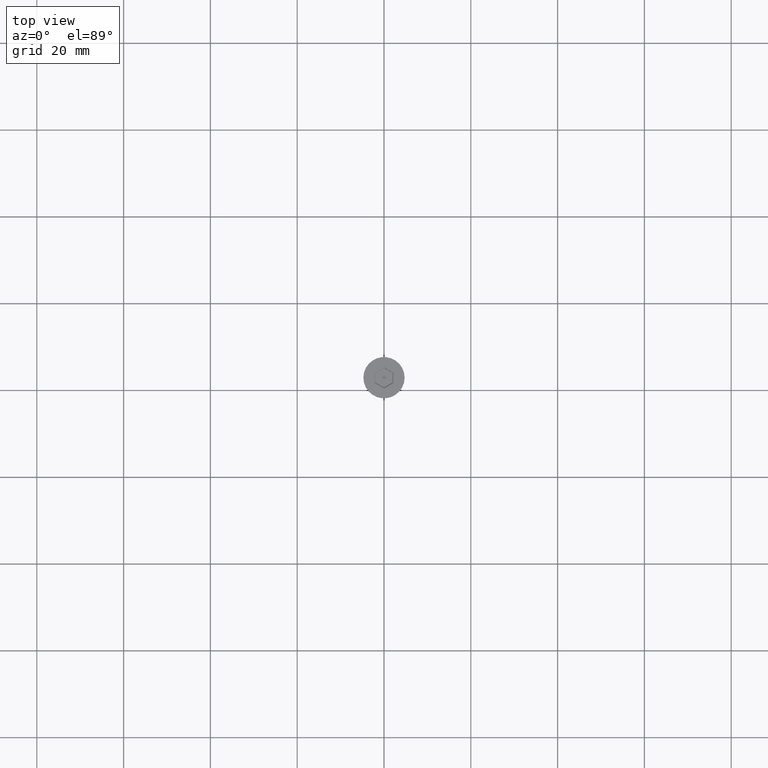
[diagram: clean part render]
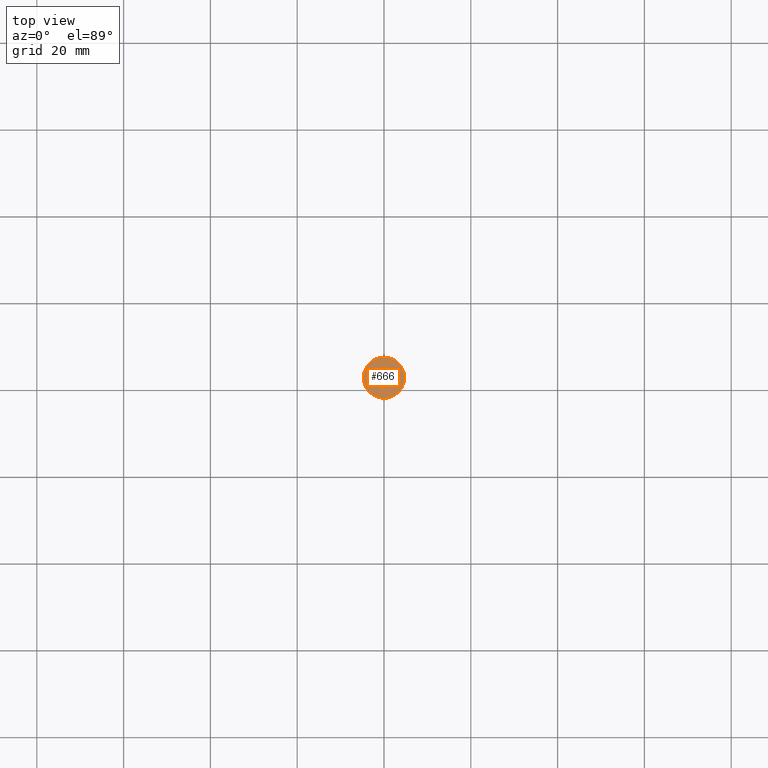
[diagram: same view with one face highlighted and labeled with its STEP entity id]
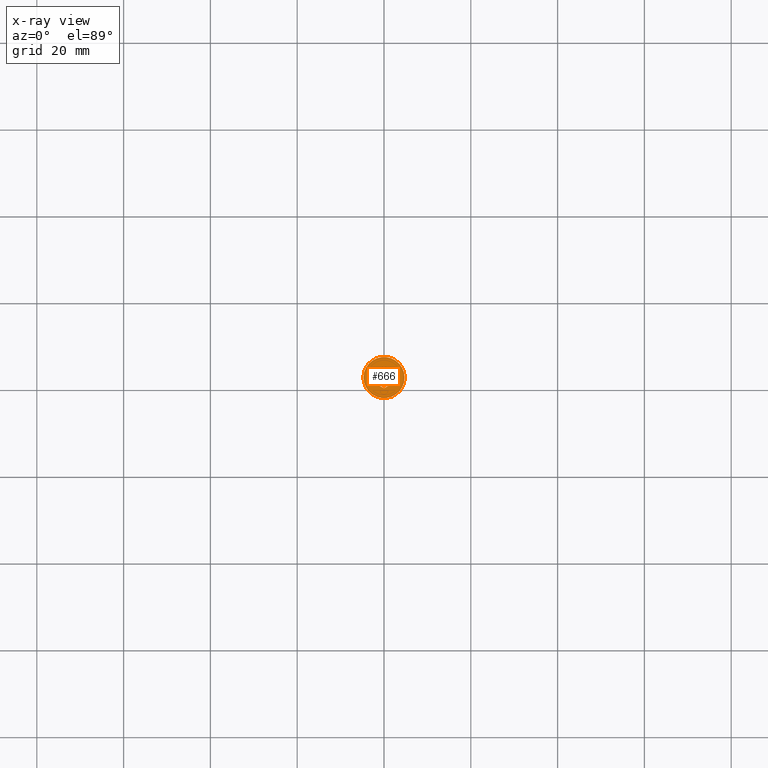
[diagram: x-ray of the same camera — body ghosted, the highlighted face saturated]
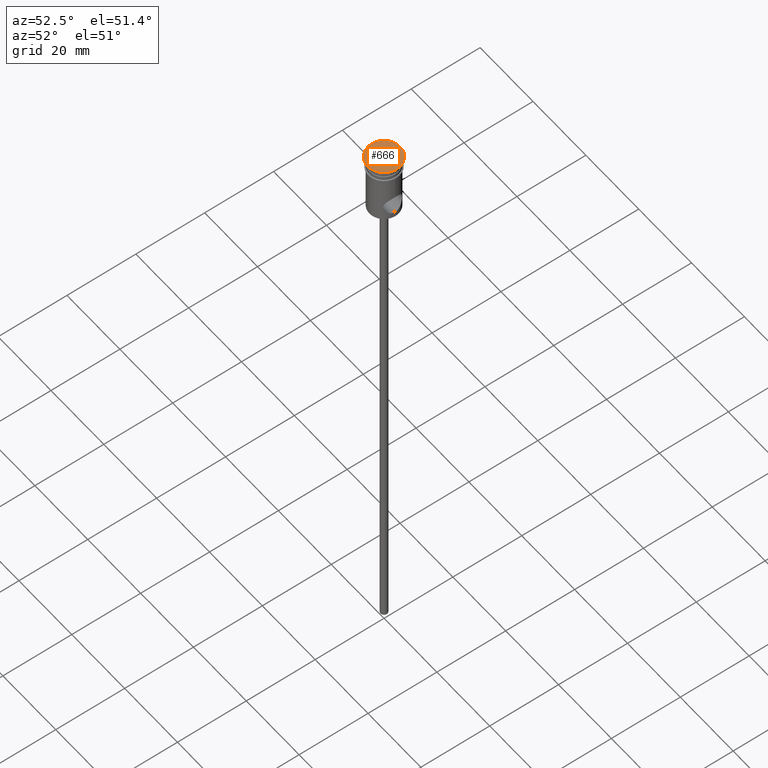
[diagram: same view with one face highlighted and labeled with its STEP entity id]
A machine part, top view. The second image highlights one B-rep face of the part: STEP entity #666.
The next image is the same camera in x-ray: the body ghosted, the highlighted face saturated — about 0% of this face is hidden behind the body in this view.
A second angle (auxiliary view) of the same face is appended — the face is thin or edge-on in the first view.
In plain terms, the highlighted planar face has unit normal (0, -0, 1).
Its self-contained STEP definition (entity closure, byte-faithful):
#2 = AXIS2_PLACEMENT_3D ( 'NONE', #846, #743, #202 ) ;
#7 = ORIENTED_EDGE ( 'NONE', *, *, #1334, .T. ) ;
#16 = VERTEX_POINT ( 'NONE', #1260 ) ;
#58 = LINE ( 'NONE', #66, #555 ) ;
#65 = DIRECTION ( 'NONE',  ( 1.000000000000000000, 0.000000000000000000, 0.000000000000000000 ) ) ;
#66 = CARTESIAN_POINT ( 'NONE',  ( 2.049999999999996714, 1.299038105676652455, 0.000000000000000000 ) ) ;
#68 = ORIENTED_EDGE ( 'NONE', *, *, #1318, .T. ) ;
#71 = LINE ( 'NONE', #646, #471 ) ;
#93 = ORIENTED_EDGE ( 'NONE', *, *, #639, .T. ) ;
#137 = LINE ( 'NONE', #788, #656 ) ;
#158 = DIRECTION ( 'NONE',  ( 1.000000000000000000, 0.000000000000000000, 0.000000000000000000 ) ) ;
#202 = DIRECTION ( 'NONE',  ( 1.000000000000000000, 0.000000000000000000, 0.000000000000000000 ) ) ;
#210 = LINE ( 'NONE', #1409, #1229 ) ;
#256 = EDGE_CURVE ( 'NONE', #16, #882, #137, .T. ) ;
#261 = AXIS2_PLACEMENT_3D ( 'NONE', #434, #1303, #65 ) ;
#266 = VECTOR ( 'NONE', #971, 1000.000000000000000 ) ;
#268 = CARTESIAN_POINT ( 'NONE',  ( -6.517717499969021618E-16, -2.482606157515383050, 0.000000000000000000 ) ) ;
#306 = LINE ( 'NONE', #540, #266 ) ;
#353 = VERTEX_POINT ( 'NONE', #1258 ) ;
#366 = EDGE_LOOP ( 'NONE', ( #560, #1206 ) ) ;
#392 = ORIENTED_EDGE ( 'NONE', *, *, #256, .T. ) ;
#393 = FACE_BOUND ( 'NONE', #1344, .T. ) ;
#400 = FACE_OUTER_BOUND ( 'NONE', #366, .T. ) ;
#404 = CIRCLE ( 'NONE', #549, 4.750000000000000000 ) ;
#427 = DIRECTION ( 'NONE',  ( 0.8660254037844385966, 0.5000000000000002220, 0.000000000000000000 ) ) ;
#434 = CARTESIAN_POINT ( 'NONE',  ( 0.000000000000000000, 0.000000000000000000, 0.000000000000000000 ) ) ;
#471 = VECTOR ( 'NONE', #834, 1000.000000000000000 ) ;
#482 = DIRECTION ( 'NONE',  ( -0.000000000000000000, -0.000000000000000000, 1.000000000000000000 ) ) ;
#487 = CARTESIAN_POINT ( 'NONE',  ( -2.149999999999994582, -1.241303078757691303, 0.000000000000000000 ) ) ;
#500 = CARTESIAN_POINT ( 'NONE',  ( 2.149999999999992806, -1.241303078757692413, 0.000000000000000000 ) ) ;
#505 = VERTEX_POINT ( 'NONE', #268 ) ;
#515 = CARTESIAN_POINT ( 'NONE',  ( 0.000000000000000000, 0.000000000000000000, 0.000000000000000000 ) ) ;
#521 = VERTEX_POINT ( 'NONE', #487 ) ;
#540 = CARTESIAN_POINT ( 'NONE',  ( 0.09999999999999617528, -2.424871130596422564, 0.000000000000000000 ) ) ;
#545 = LINE ( 'NONE', #645, #1345 ) ;
#549 = AXIS2_PLACEMENT_3D ( 'NONE', #515, #482, #158 ) ;
#555 = VECTOR ( 'NONE', #609, 1000.000000000000114 ) ;
#560 = ORIENTED_EDGE ( 'NONE', *, *, #1353, .T. ) ;
#609 = DIRECTION ( 'NONE',  ( 0.8660254037844385966, -0.5000000000000001110, 0.000000000000000000 ) ) ;
#639 = EDGE_CURVE ( 'NONE', #353, #16, #58, .T. ) ;
#645 = CARTESIAN_POINT ( 'NONE',  ( -2.049999999999997602, -1.299038105676652011, 0.000000000000000000 ) ) ;
#646 = CARTESIAN_POINT ( 'NONE',  ( -2.149999999999994138, 1.125833024919770109, 0.000000000000000000 ) ) ;
#656 = VECTOR ( 'NONE', #1240, 1000.000000000000000 ) ;
#666 = ADVANCED_FACE ( 'NONE', ( #393, #400 ), #1086, .T. ) ;
#694 = CIRCLE ( 'NONE', #261, 4.750000000000000000 ) ;
#743 = DIRECTION ( 'NONE',  ( 0.000000000000000000, -0.000000000000000000, 1.000000000000000000 ) ) ;
#758 = EDGE_CURVE ( 'NONE', #882, #505, #306, .T. ) ;
#788 = CARTESIAN_POINT ( 'NONE',  ( 2.149999999999992806, -1.125833024919770331, 0.000000000000000000 ) ) ;
#833 = CARTESIAN_POINT ( 'NONE',  ( 4.750000000000000000, 0.000000000000000000, 0.000000000000000000 ) ) ;
#834 = DIRECTION ( 'NONE',  ( 9.630221786776664787E-17, 1.000000000000000000, 0.000000000000000000 ) ) ;
#846 = CARTESIAN_POINT ( 'NONE',  ( 0.000000000000000000, 0.000000000000000000, 0.000000000000000000 ) ) ;
#876 = VERTEX_POINT ( 'NONE', #1401 ) ;
#882 = VERTEX_POINT ( 'NONE', #500 ) ;
#899 = VERTEX_POINT ( 'NONE', #833 ) ;
#955 = DIRECTION ( 'NONE',  ( -0.8660254037844385966, 0.5000000000000001110, 0.000000000000000000 ) ) ;
#971 = DIRECTION ( 'NONE',  ( -0.8660254037844387076, -0.4999999999999998335, 0.000000000000000000 ) ) ;
#980 = VERTEX_POINT ( 'NONE', #1198 ) ;
#996 = EDGE_CURVE ( 'NONE', #505, #521, #545, .T. ) ;
#1086 = PLANE ( 'NONE',  #2 ) ;
#1168 = ORIENTED_EDGE ( 'NONE', *, *, #758, .T. ) ;
#1198 = CARTESIAN_POINT ( 'NONE',  ( -4.750000000000000000, 5.817072295949927426E-16, 0.000000000000000000 ) ) ;
#1206 = ORIENTED_EDGE ( 'NONE', *, *, #1420, .T. ) ;
#1229 = VECTOR ( 'NONE', #427, 999.9999999999998863 ) ;
#1240 = DIRECTION ( 'NONE',  ( -1.926044357355332218E-16, -1.000000000000000000, 0.000000000000000000 ) ) ;
#1258 = CARTESIAN_POINT ( 'NONE',  ( 3.449642192269546890E-16, 2.482606157515383494, 0.000000000000000000 ) ) ;
#1260 = CARTESIAN_POINT ( 'NONE',  ( 2.149999999999993250, 1.241303078757691969, 0.000000000000000000 ) ) ;
#1303 = DIRECTION ( 'NONE',  ( -0.000000000000000000, -0.000000000000000000, 1.000000000000000000 ) ) ;
#1318 = EDGE_CURVE ( 'NONE', #521, #876, #71, .T. ) ;
#1334 = EDGE_CURVE ( 'NONE', #876, #353, #210, .T. ) ;
#1344 = EDGE_LOOP ( 'NONE', ( #1418, #68, #7, #93, #392, #1168 ) ) ;
#1345 = VECTOR ( 'NONE', #955, 1000.000000000000114 ) ;
#1353 = EDGE_CURVE ( 'NONE', #899, #980, #694, .T. ) ;
#1401 = CARTESIAN_POINT ( 'NONE',  ( -2.149999999999994138, 1.241303078757690859, 0.000000000000000000 ) ) ;
#1409 = CARTESIAN_POINT ( 'NONE',  ( -0.09999999999999699407, 2.424871130596422564, 0.000000000000000000 ) ) ;
#1418 = ORIENTED_EDGE ( 'NONE', *, *, #996, .T. ) ;
#1420 = EDGE_CURVE ( 'NONE', #980, #899, #404, .T. ) ;